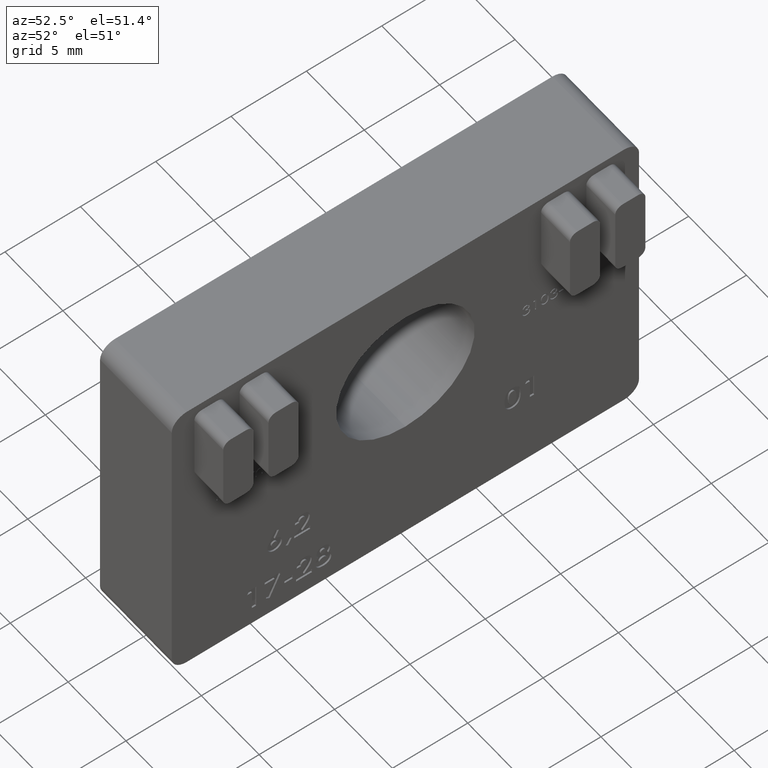
[diagram: clean part render]
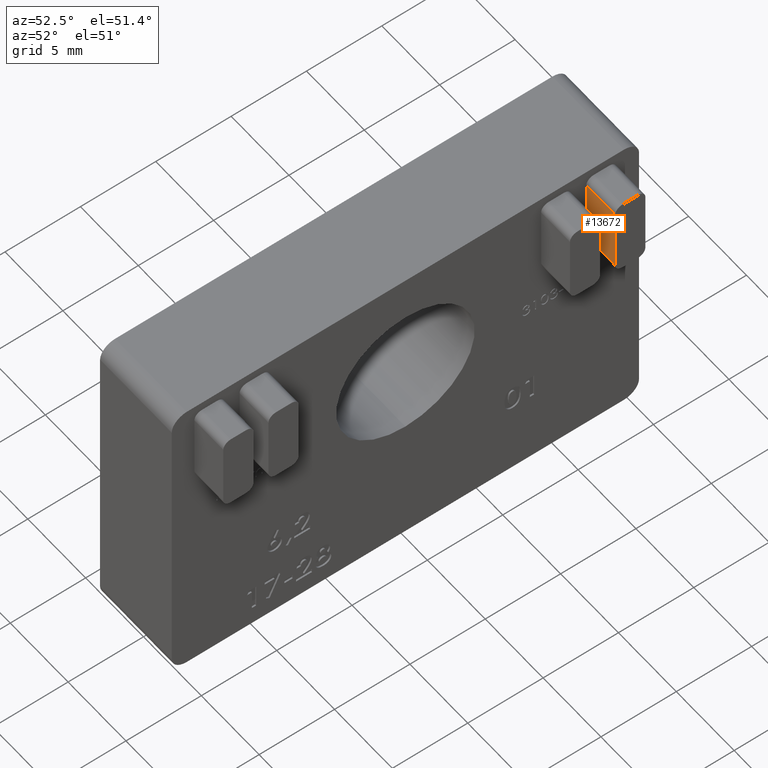
[diagram: same view with one face highlighted and labeled with its STEP entity id]
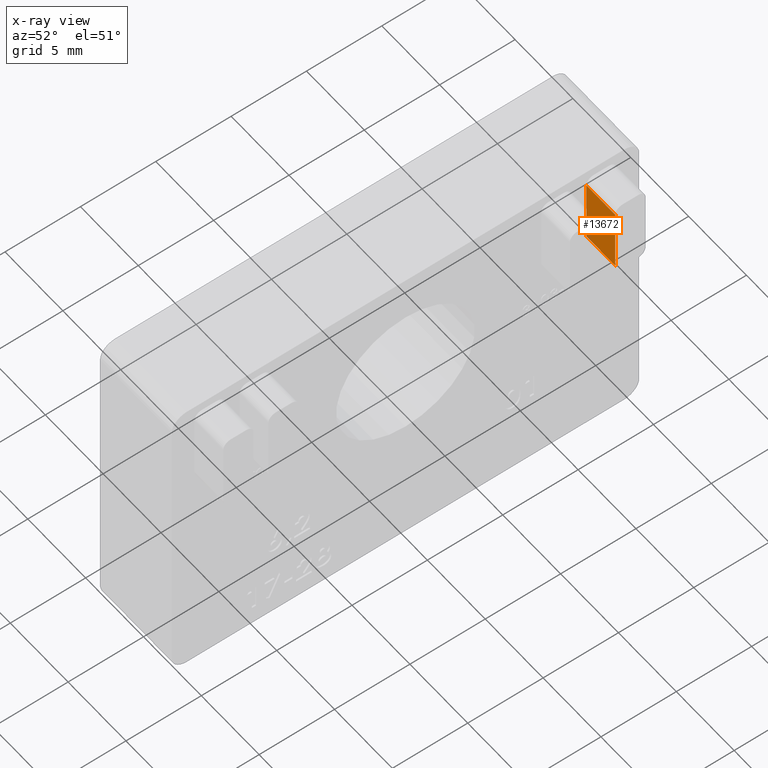
[diagram: x-ray of the same camera — body ghosted, the highlighted face saturated]
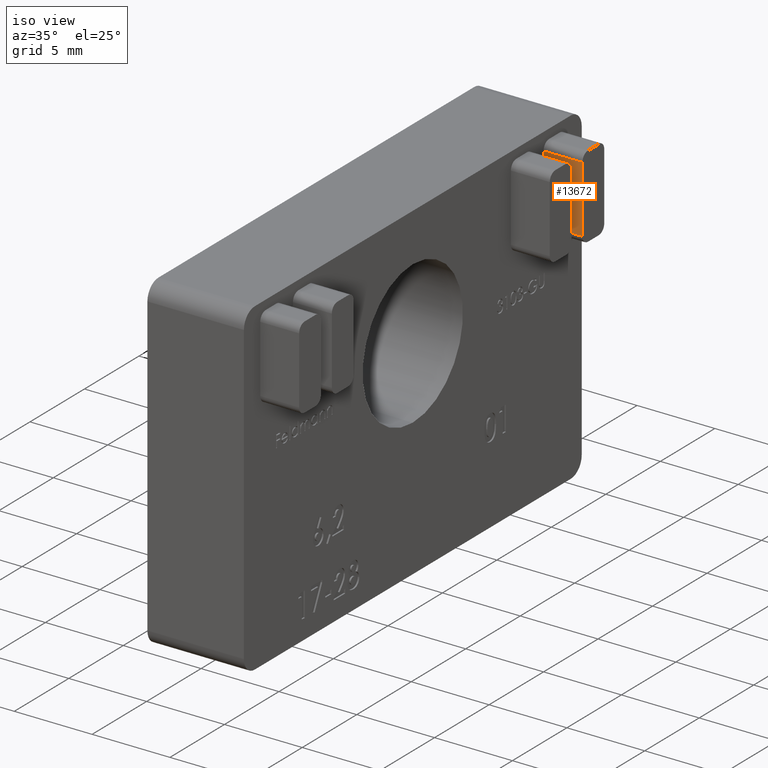
[diagram: same view with one face highlighted and labeled with its STEP entity id]
A machine part, auxiliary view. The second image highlights one B-rep face of the part: STEP entity #13672.
The next image is the same camera in x-ray: the body ghosted, the highlighted face saturated — about 6% of this face is hidden behind the body in this view.
A second angle (iso view) of the same face is appended — the face is thin or edge-on in the first view.
In plain terms, the highlighted planar face has unit normal (-0, 1, 0).
Its self-contained STEP definition (entity closure, byte-faithful):
#300 = VECTOR ( 'NONE', #6988, 1000.000000000000000 ) ;
#385 = CARTESIAN_POINT ( 'NONE',  ( 5.599999999999999645, 11.99999999999999822, 9.450000000000006395 ) ) ;
#1924 = PLANE ( 'NONE',  #2552 ) ;
#2113 = VECTOR ( 'NONE', #3587, 1000.000000000000000 ) ;
#2434 = ORIENTED_EDGE ( 'NONE', *, *, #4603, .T. ) ;
#2552 = AXIS2_PLACEMENT_3D ( 'NONE', #14068, #13778, #17096 ) ;
#3587 = DIRECTION ( 'NONE',  ( 0.000000000000000000, 3.273063162220390326E-16, -1.000000000000000000 ) ) ;
#3713 = LINE ( 'NONE', #8466, #2113 ) ;
#3723 = VERTEX_POINT ( 'NONE', #18150 ) ;
#4002 = ORIENTED_EDGE ( 'NONE', *, *, #17412, .T. ) ;
#4317 = CARTESIAN_POINT ( 'NONE',  ( 3.100000000000000089, 11.99999999999999822, 9.450000000000006395 ) ) ;
#4603 = EDGE_CURVE ( 'NONE', #5199, #9729, #9019, .T. ) ;
#5199 = VERTEX_POINT ( 'NONE', #15086 ) ;
#6988 = DIRECTION ( 'NONE',  ( 1.000000000000000000, -0.000000000000000000, -0.000000000000000000 ) ) ;
#8466 = CARTESIAN_POINT ( 'NONE',  ( 5.599999999999999645, 11.99999999999999822, 9.950000000000008171 ) ) ;
#8692 = DIRECTION ( 'NONE',  ( -1.000000000000000000, 0.000000000000000000, 0.000000000000000000 ) ) ;
#8844 = CARTESIAN_POINT ( 'NONE',  ( 5.599999999999999645, 12.00000000000000000, 5.150000000000006573 ) ) ;
#9019 = LINE ( 'NONE', #385, #21761 ) ;
#9729 = VERTEX_POINT ( 'NONE', #4317 ) ;
#10740 = FACE_OUTER_BOUND ( 'NONE', #15617, .T. ) ;
#11128 = VECTOR ( 'NONE', #17319, 1000.000000000000000 ) ;
#11913 = LINE ( 'NONE', #20587, #11128 ) ;
#13279 = VERTEX_POINT ( 'NONE', #18260 ) ;
#13375 = ORIENTED_EDGE ( 'NONE', *, *, #19462, .F. ) ;
#13672 = ADVANCED_FACE ( 'NONE', ( #10740 ), #1924, .F. ) ;
#13778 = DIRECTION ( 'NONE',  ( -0.000000000000000000, 1.000000000000000000, 3.273063162220390326E-16 ) ) ;
#14068 = CARTESIAN_POINT ( 'NONE',  ( 5.599999999999999645, 11.99999999999999822, 9.950000000000008171 ) ) ;
#15086 = CARTESIAN_POINT ( 'NONE',  ( 5.599999999999999645, 11.99999999999999822, 9.450000000000006395 ) ) ;
#15617 = EDGE_LOOP ( 'NONE', ( #13375, #2434, #16835, #4002 ) ) ;
#16835 = ORIENTED_EDGE ( 'NONE', *, *, #21002, .T. ) ;
#17096 = DIRECTION ( 'NONE',  ( 0.000000000000000000, -3.273063162220390326E-16, 1.000000000000000000 ) ) ;
#17277 = LINE ( 'NONE', #8844, #300 ) ;
#17319 = DIRECTION ( 'NONE',  ( 0.000000000000000000, 3.273063162220390326E-16, -1.000000000000000000 ) ) ;
#17412 = EDGE_CURVE ( 'NONE', #13279, #3723, #17277, .T. ) ;
#18150 = CARTESIAN_POINT ( 'NONE',  ( 5.599999999999999645, 12.00000000000000000, 5.150000000000006573 ) ) ;
#18260 = CARTESIAN_POINT ( 'NONE',  ( 3.100000000000000089, 12.00000000000000000, 5.150000000000006573 ) ) ;
#19462 = EDGE_CURVE ( 'NONE', #5199, #3723, #3713, .T. ) ;
#20587 = CARTESIAN_POINT ( 'NONE',  ( 3.100000000000000089, 11.99999999999999822, 9.950000000000008171 ) ) ;
#21002 = EDGE_CURVE ( 'NONE', #9729, #13279, #11913, .T. ) ;
#21761 = VECTOR ( 'NONE', #8692, 1000.000000000000000 ) ;